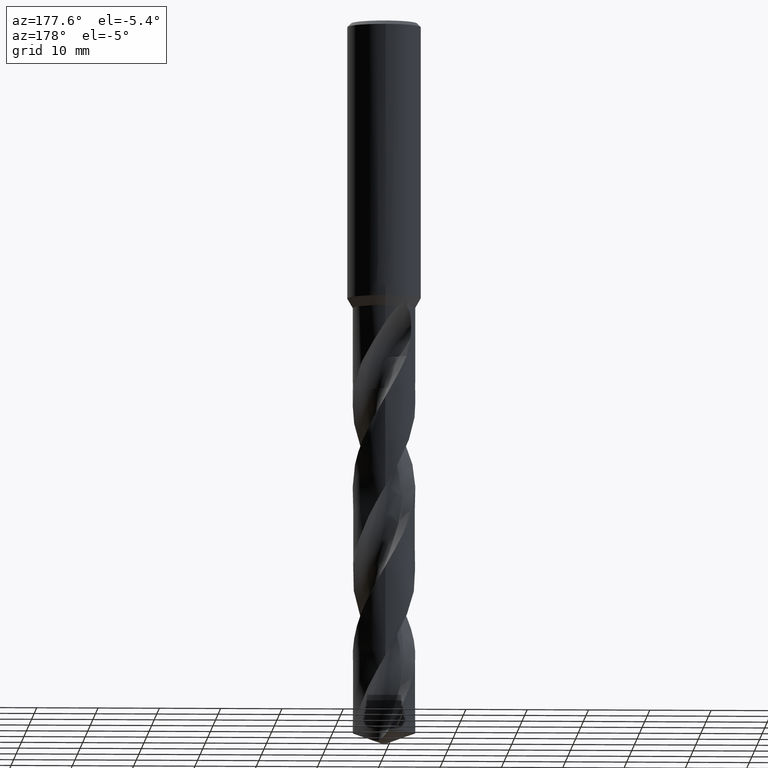
[diagram: clean part render]
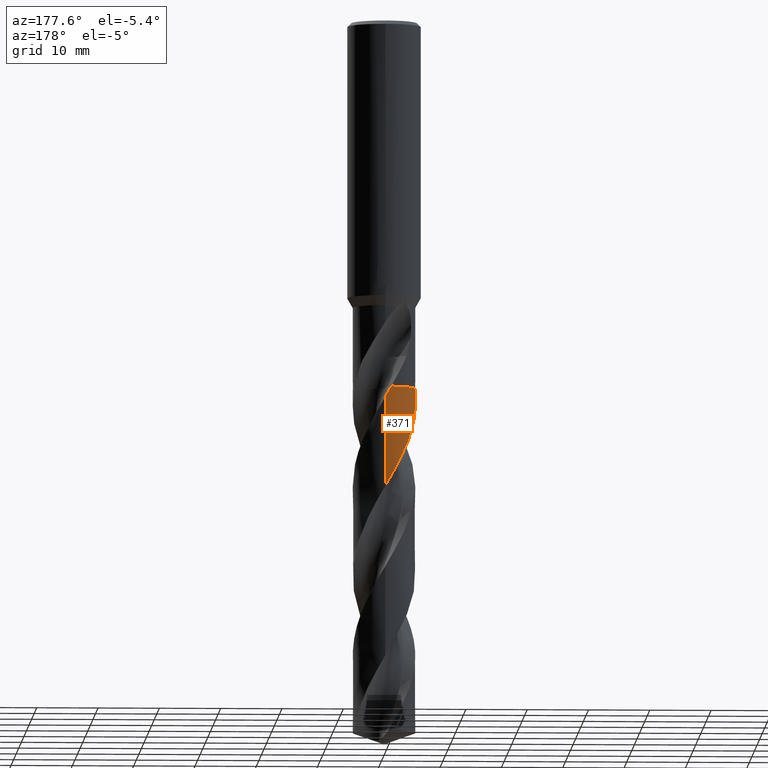
[diagram: same view with one face highlighted and labeled with its STEP entity id]
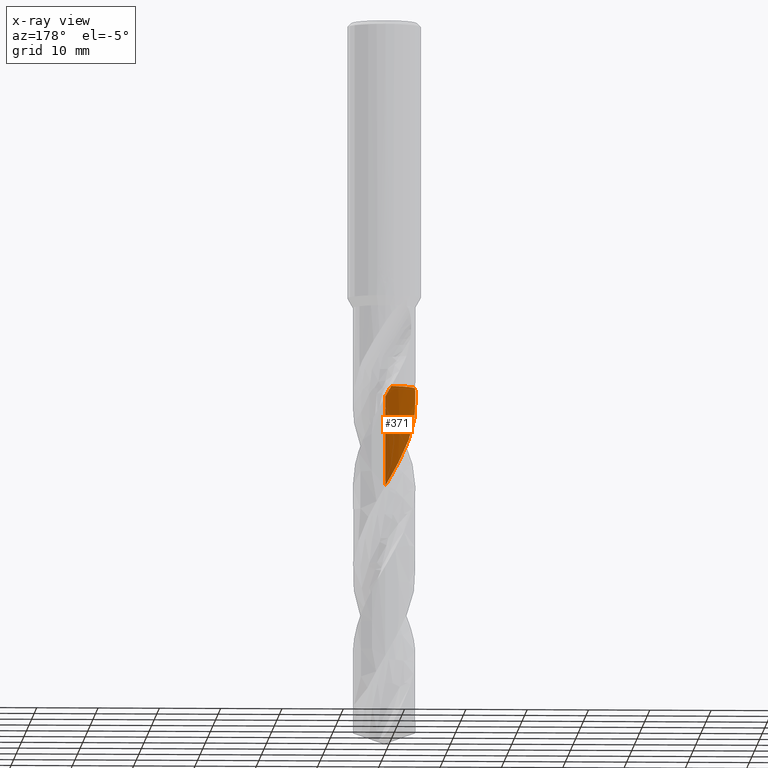
[diagram: x-ray of the same camera — body ghosted, the highlighted face saturated]
A machine part, auxiliary view. The second image highlights one B-rep face of the part: STEP entity #371.
The next image is the same camera in x-ray: the body ghosted, the highlighted face saturated — about 0% of this face is hidden behind the body in this view.
In plain terms, the highlighted conical surface has half-angle 0 deg.
Its self-contained STEP definition (entity closure, byte-faithful):
#315=VERTEX_POINT('',#871);
#339=VERTEX_POINT('',#897);
#371=ADVANCED_FACE('',(#932),#933,.T.);
#431=EDGE_CURVE('',#339,#761,#999,.T.);
#461=VERTEX_POINT('',#1031);
#475=EDGE_CURVE('',#641,#769,#1046,.T.);
#487=EDGE_CURVE('',#461,#315,#1058,.T.);
#525=EDGE_CURVE('',#769,#339,#1099,.T.);
#641=VERTEX_POINT('',#1220);
#685=EDGE_CURVE('',#761,#461,#1269,.T.);
#713=EDGE_CURVE('',#315,#641,#1301,.T.);
#761=VERTEX_POINT('',#1355);
#769=VERTEX_POINT('',#1364);
#871=CARTESIAN_POINT('',(-0.98374388913353,5.00412110768931,-59.8049999999999));
#897=CARTESIAN_POINT('',(-4.90325783809125,-1.40251300010991,-59.805));
#932=FACE_OUTER_BOUND('',#2489,.T.);
#933=CONICAL_SURFACE('',#2490,5.09995,1.7748196879988E-006);
#999=B_SPLINE_CURVE_WITH_KNOTS('',3,(#3579,#3580,#3581,#3582),.UNSPECIFIED.,.F.,.F.,(4,4),(0.0,0.0126443628312227),.UNSPECIFIED.);
#1031=CARTESIAN_POINT('',(-0.986576613607107,5.00356338977369,-59.8));
#1046=LINE('',#3854,#3855);
#1058=B_SPLINE_CURVE_WITH_KNOTS('',3,(#3891,#3892,#3893,#3894),.UNSPECIFIED.,.F.,.F.,(4,4),(0.0,0.0103459259684226),.UNSPECIFIED.);
#1099=B_SPLINE_CURVE_WITH_KNOTS('',3,(#3978,#3979,#3980,#3981,#3982,#3983,#3984,#3985,#3986,#3987,#3988,#3989,#3990,#3991,#3992,#3993,#3994,#3995,#3996,#3997,#3998,#3999,#4000,#4001,#4002,#4003,#4004,#4005,#4006,#4007,#4008,#4009,#4010,#4011,#4012,#4013,#4014,#4015,#4016,#4017,#4018,#4019,#4020,#4021,#4022,#4023,#4024,#4025,#4026,#4027,#4028,#4029,#4030,#4031,#4032,#4033,#4034,#4035,#4036,#4037,#4038,#4039,#4040,#4041,#4042,#4043,#4044,#4045,#4046,#4047,#4048,#4049,#4050,#4051,#4052,#4053,#4054,#4055),.UNSPECIFIED.,.F.,.F.,(4,2,2,2,2,2,2,2,2,2,2,2,2,2,2,2,2,2,2,2,2,2,2,2,2,2,2,2,2,2,2,2,2,2,2,2,2,2,4),(0.0,0.506806175186956,2.69772159976529,4.39821414943866,5.06985226234535,6.05446138479727,6.6155146856946,7.39544015269118,9.1730037461211,9.35662725150545,10.9569984848496,12.1630978019623,15.1464025452352,17.3925714709042,19.6606016495272,21.9100545164391,24.1780187171165,26.5652812262565,28.5220833392288,30.4759061097924,33.3469893832097,35.5102113997374,38.5334292747973,39.3424559377009,42.7908344138158,43.8460064045198,47.230343596797,48.2550312815849,51.2280095190966,52.0685973276942,52.8538685811947,54.345493536443,55.0006115957432,56.229319076894,56.7671955061043,57.2703456125229,59.1621746454104,59.5163769769078,64.8776815178154),.UNSPECIFIED.);
#1220=CARTESIAN_POINT('',(9.86913019607822E-012,5.09990305292981,-61.5201351925711));
#1269=CIRCLE('',#6421,5.0999);
#1301=B_SPLINE_CURVE_WITH_KNOTS('',3,(#6559,#6560,#6561,#6562,#6563,#6564,#6565,#6566,#6567,#6568,#6569,#6570,#6571,#6572,#6573,#6574,#6575,#6576,#6577,#6578,#6579,#6580,#6581,#6582,#6583,#6584,#6585,#6586,#6587,#6588,#6589,#6590,#6591,#6592,#6593,#6594,#6595,#6596,#6597,#6598,#6599,#6600,#6601,#6602,#6603,#6604,#6605,#6606,#6607,#6608,#6609,#6610,#6611,#6612,#6613,#6614,#6615,#6616,#6617,#6618,#6619,#6620,#6621,#6622,#6623,#6624,#6625,#6626,#6627,#6628,#6629,#6630,#6631,#6632,#6633,#6634,#6635,#6636,#6637,#6638,#6639,#6640,#6641,#6642),.UNSPECIFIED.,.F.,.F.,(4,2,2,2,2,2,2,2,2,2,2,2,2,2,2,2,2,2,2,2,2,2,2,2,2,2,2,2,2,2,2,2,2,2,2,2,2,2,2,2,2,4),(0.0,4.14104329749527,5.11842358928837,6.08666253894648,7.05877666723696,9.01036426490475,10.0033521753285,10.3315079213021,11.7449117975777,12.7232042316135,16.9422837005349,17.0632145290833,20.5080083112182,23.2581567473626,25.2268379664242,26.640381537535,28.8179240590602,32.2396876966281,34.6587318716296,35.8792422499416,38.1912921986218,39.179433071881,40.4222015232478,42.7059818802668,43.6946195520445,44.9754610945242,47.2606856978877,51.1929236706221,52.8928398321234,54.2130159433661,55.560852710194,56.1535217087249,57.2643225463067,57.7512955933355,58.6617007419882,60.2588877445092,60.5582633934712,61.6830222783156,63.3719657069717,64.2159601657003,64.6377815976494,65.0592084040701),.UNSPECIFIED.);
#1355=CARTESIAN_POINT('',(-4.90246778498844,-1.40527208296134,-59.8));
#1364=CARTESIAN_POINT('',(-9.74273749090929E-012,5.09992900482054,-76.1424040953496));
#2489=EDGE_LOOP('',(#9900,#9901,#9902,#9903,#9904,#9905));
#2490=AXIS2_PLACEMENT_3D('',#9906,#9907,#9908);
#3579=CARTESIAN_POINT('',(-4.90419855567647,-1.39922004524644,-59.8109661820139));
#3580=CARTESIAN_POINT('',(-4.90362286057172,-1.40123780508678,-59.807310822254));
#3581=CARTESIAN_POINT('',(-4.90304593682381,-1.40325515136825,-59.803655429043));
#3582=CARTESIAN_POINT('',(-4.90246778498843,-1.40527208296136,-59.8));
#3854=CARTESIAN_POINT('',(-6.16813008313439E-016,5.09995,-87.9718759026212));
#3855=VECTOR('',#10027,1.0);
#3891=CARTESIAN_POINT('',(-0.9865766136071,5.00356338977368,-59.8));
#3892=CARTESIAN_POINT('',(-0.98488470584999,5.00389699675089,-59.8029865173861));
#3893=CARTESIAN_POINT('',(-0.983192636907565,5.00422974399151,-59.8059730394419));
#3894=CARTESIAN_POINT('',(-0.981500407433335,5.00456163139205,-59.8089595661627));
#3978=CARTESIAN_POINT('',(-5.01437536289495,-0.930612550953527,-116.143751805242));
#3979=CARTESIAN_POINT('',(-4.9990156640066,-1.01337306155312,-115.997280155719));
#3980=CARTESIAN_POINT('',(-4.98160673251397,-1.09579353412783,-115.850301911086));
#3981=CARTESIAN_POINT('',(-4.87744584134155,-1.53446392031619,-115.066026681066));
#3982=CARTESIAN_POINT('',(-4.75454219505738,-1.88130734597919,-114.433182944864));
#3983=CARTESIAN_POINT('',(-4.4714205411358,-2.46934917168271,-113.303599313404));
#3984=CARTESIAN_POINT('',(-4.32642306954688,-2.71535747189411,-112.812350880042));
#3985=CARTESIAN_POINT('',(-4.09671358556612,-3.03965892210803,-112.123603532596));
#3986=CARTESIAN_POINT('',(-4.02869059727373,-3.12925580712766,-111.928327710424));
#3987=CARTESIAN_POINT('',(-3.85364941154734,-3.34462584414786,-111.447366291556));
#3988=CARTESIAN_POINT('',(-3.74338890942619,-3.46759639941368,-111.161957305325));
#3989=CARTESIAN_POINT('',(-3.56113980127987,-3.65199141933991,-110.713274970349));
#3990=CARTESIAN_POINT('',(-3.49317491953676,-3.7170510486422,-110.550479162151));
#3991=CARTESIAN_POINT('',(-3.32660145001009,-3.86790620793833,-110.16110013988));
#3992=CARTESIAN_POINT('',(-3.22639980684137,-3.95187678677829,-109.934286903758));
#3993=CARTESIAN_POINT('',(-2.8874124521328,-4.21444426559598,-109.191601306119));
#3994=CARTESIAN_POINT('',(-2.63632777164021,-4.37588522808612,-108.678154904842));
#3995=CARTESIAN_POINT('',(-2.34541078255551,-4.52878015004869,-108.108617505906));
#3996=CARTESIAN_POINT('',(-2.31804275199572,-4.54284929407706,-108.055276453413));
#3997=CARTESIAN_POINT('',(-2.05072575888418,-4.67722178359776,-107.536878484027));
#3998=CARTESIAN_POINT('',(-1.80193860207216,-4.77856550838434,-107.073892332235));
#3999=CARTESIAN_POINT('',(-1.35405804193212,-4.92109216011242,-106.258075377716));
#4000=CARTESIAN_POINT('',(-1.15816486900284,-4.97085452158816,-105.906053939047));
#4001=CARTESIAN_POINT('',(-0.468015067129299,-5.10305303853319,-104.68792901675));
#4002=CARTESIAN_POINT('',(0.0345516234611005,-5.12436552032611,-103.834742762714));
#4003=CARTESIAN_POINT('',(0.907158342407013,-5.03277639519837,-102.315581546276));
#4004=CARTESIAN_POINT('',(1.27611766301375,-4.95212811014398,-101.657907080069));
#4005=CARTESIAN_POINT('',(1.99433130689478,-4.70929417495415,-100.346277614883));
#4006=CARTESIAN_POINT('',(2.3402268930041,-4.54730274844383,-99.6937171090476));
#4007=CARTESIAN_POINT('',(2.98673605067603,-4.15110151986585,-98.3812957479625));
#4008=CARTESIAN_POINT('',(3.28550329496123,-3.91891972628882,-97.7230595034067));
#4009=CARTESIAN_POINT('',(3.82943013031851,-3.38972930185451,-96.4105496973377));
#4010=CARTESIAN_POINT('',(4.07174730419821,-3.09442068708233,-95.757945295402));
#4011=CARTESIAN_POINT('',(4.49694006104684,-2.43879471680514,-94.4054680304545));
#4012=CARTESIAN_POINT('',(4.67454093233806,-2.07828015218606,-93.70676173416));
#4013=CARTESIAN_POINT('',(4.91791214534245,-1.38991935680526,-92.4445981840229));
#4014=CARTESIAN_POINT('',(4.99727312464737,-1.07002140805806,-91.8801712570881));
#4015=CARTESIAN_POINT('',(5.09323082010345,-0.419922308027232,-90.7441187340988));
#4016=CARTESIAN_POINT('',(5.10959936990615,-0.0921332461078373,-90.1726849288547));
#4017=CARTESIAN_POINT('',(5.07244863455344,0.714662142703177,-88.7716151265527));
#4018=CARTESIAN_POINT('',(4.98261522701799,1.18927144293379,-87.9507333931186));
#4019=CARTESIAN_POINT('',(4.7106610616158,1.98757638902492,-86.4903646439546));
#4020=CARTESIAN_POINT('',(4.55772274175484,2.31694703363092,-85.8582460001127));
#4021=CARTESIAN_POINT('',(4.10950881128891,3.06242591892712,-84.3534938063252));
#4022=CARTESIAN_POINT('',(3.7855133875854,3.4545363806879,-83.4907191021389));
#4023=CARTESIAN_POINT('',(3.3100228322701,3.88218554586589,-82.3773805516894));
#4024=CARTESIAN_POINT('',(3.20612658802229,3.96844285591263,-82.1416373804866));
#4025=CARTESIAN_POINT('',(2.63910858137851,4.40213494808915,-80.9011328442572));
#4026=CARTESIAN_POINT('',(2.12370290470067,4.67262842355339,-79.9184031571653));
#4027=CARTESIAN_POINT('',(1.40552798253318,4.90561976622134,-78.6077109834897));
#4028=CARTESIAN_POINT('',(1.23499924444043,4.95129043796247,-78.2994018772178));
#4029=CARTESIAN_POINT('',(0.508299717233673,5.10604879314594,-77.0080236855031));
#4030=CARTESIAN_POINT('',(-0.0613335155582535,5.13094485268736,-76.0445765438895));
#4031=CARTESIAN_POINT('',(-0.793997436250945,5.04065999736431,-74.76384643561));
#4032=CARTESIAN_POINT('',(-0.962576505811624,5.01116723378968,-74.4650018135692));
#4033=CARTESIAN_POINT('',(-1.61164241170653,4.86382926011549,-73.306234643058));
#4034=CARTESIAN_POINT('',(-2.07694416910319,4.68436217058621,-72.4583142409519));
#4035=CARTESIAN_POINT('',(-2.63271078983409,4.37010618174268,-71.356240339497));
#4036=CARTESIAN_POINT('',(-2.75205542246139,4.29593154467345,-71.1135012256426));
#4037=CARTESIAN_POINT('',(-2.97626453686376,4.14344981773009,-70.643032705702));
#4038=CARTESIAN_POINT('',(-3.08145214528257,4.0658224270207,-70.4152484902633));
#4039=CARTESIAN_POINT('',(-3.37755168894403,3.82922409846394,-69.756712845628));
#4040=CARTESIAN_POINT('',(-3.5601664070454,3.66009699420584,-69.327069950092));
#4041=CARTESIAN_POINT('',(-3.80444675892999,3.39812808028086,-68.706750949306));
#4042=CARTESIAN_POINT('',(-3.8763983991149,3.31581425893215,-68.5173113679304));
#4043=CARTESIAN_POINT('',(-4.07556938576426,3.07260505836869,-67.972984727614));
#4044=CARTESIAN_POINT('',(-4.19582223445529,2.90624833737322,-67.6188615585607));
#4045=CARTESIAN_POINT('',(-4.35388059770288,2.65723546691003,-67.1085256736772));
#4046=CARTESIAN_POINT('',(-4.39996260099227,2.58020963016195,-66.9531879979826));
#4047=CARTESIAN_POINT('',(-4.48512040972022,2.42895801868104,-66.6523215920484));
#4048=CARTESIAN_POINT('',(-4.52444184833137,2.35490191498762,-66.5067700011642));
#4049=CARTESIAN_POINT('',(-4.70292661230865,1.99775767125918,-65.8146252548848));
#4050=CARTESIAN_POINT('',(-4.8174139024952,1.70323516743473,-65.2713549808465));
#4051=CARTESIAN_POINT('',(-4.92017365399543,1.34329563795525,-64.6223161993472));
#4052=CARTESIAN_POINT('',(-4.93538689040048,1.28627738749977,-64.5199062797178));
#4053=CARTESIAN_POINT('',(-5.16502844249025,0.361387211220461,-62.8677786676665));
#4054=CARTESIAN_POINT('',(-5.14814403465456,-0.546470136682576,-61.3561769176555));
#4055=CARTESIAN_POINT('',(-4.90322234654316,-1.4026370581174,-59.8047751960075));
#6421=AXIS2_PLACEMENT_3D('',#10204,#10205,#10206);
#6559=CARTESIAN_POINT('',(-0.984615721093342,5.00394963548128,-59.8034611979805));
#6560=CARTESIAN_POINT('',(-0.307365696002802,5.13721273568368,-60.9988411811976));
#6561=CARTESIAN_POINT('',(0.39002747452866,5.13161099114901,-62.1825914634169));
#6562=CARTESIAN_POINT('',(1.22445248527238,4.95341416670286,-63.660177821283));
#6563=CARTESIAN_POINT('',(1.3820697733521,4.91177015103264,-63.9421787759407));
#6564=CARTESIAN_POINT('',(1.69132744116389,4.81399317118228,-64.5038340402206));
#6565=CARTESIAN_POINT('',(1.84281194236439,4.75806201459791,-64.7831631736589));
#6566=CARTESIAN_POINT('',(2.1405232760885,4.63179113195253,-65.3433510631192));
#6567=CARTESIAN_POINT('',(2.28659745937101,4.56144937871759,-65.6238804208191));
#6568=CARTESIAN_POINT('',(2.71516226077853,4.32930053911736,-66.467893547904));
#6569=CARTESIAN_POINT('',(2.98571712012778,4.14733688152301,-67.0298148907716));
#6570=CARTESIAN_POINT('',(3.36495094932493,3.83583387073943,-67.8799244496078));
#6571=CARTESIAN_POINT('',(3.4876671976519,3.72460931309602,-68.1664207102799));
#6572=CARTESIAN_POINT('',(3.64347230624182,3.56892714281497,-68.5478034398138));
#6573=CARTESIAN_POINT('',(3.68154726005893,3.52963777007456,-68.6425238662642));
#6574=CARTESIAN_POINT('',(3.88022016794244,3.31791548523437,-69.1452751328238));
#6575=CARTESIAN_POINT('',(4.02937804923852,3.13509522782639,-69.5528172314168));
#6576=CARTESIAN_POINT('',(4.25950201651731,2.80934614480963,-70.2431876934746));
#6577=CARTESIAN_POINT('',(4.34714165373955,2.67172401852124,-70.5251848488719));
#6578=CARTESIAN_POINT('',(4.77682398503797,1.91975090711364,-72.0259635768624));
#6579=CARTESIAN_POINT('',(4.99593099910179,1.24314465009193,-73.232075144374));
#6580=CARTESIAN_POINT('',(5.07306168182975,0.52316165087817,-74.4848882730818));
#6581=CARTESIAN_POINT('',(5.07509130322998,0.503092238632936,-74.5197907386953));
#6582=CARTESIAN_POINT('',(5.13143455614094,-0.0891255224492417,-75.5494336263376));
#6583=CARTESIAN_POINT('',(5.08875925053858,-0.666871165584541,-76.541530133851));
#6584=CARTESIAN_POINT('',(4.84022495462709,-1.67106068836528,-78.3309877237628));
#6585=CARTESIAN_POINT('',(4.67025995847174,-2.09957941655942,-79.1221811990753));
#6586=CARTESIAN_POINT('',(4.28471782608259,-2.78536852372584,-80.4860324616932));
#6587=CARTESIAN_POINT('',(4.09649651166674,-3.0555147399375,-81.0533875250666));
#6588=CARTESIAN_POINT('',(3.73036584339394,-3.48561014968563,-82.0303470606712));
#6589=CARTESIAN_POINT('',(3.5651790842897,-3.6543769816146,-82.437619524603));
#6590=CARTESIAN_POINT('',(3.11760373164529,-4.05238938734739,-83.475584417922));
#6591=CARTESIAN_POINT('',(2.82106239860437,-4.2641699629993,-84.1043776339689));
#6592=CARTESIAN_POINT('',(2.00687030104467,-4.72315104941767,-85.7226567889715));
#6593=CARTESIAN_POINT('',(1.46594197171483,-4.91792967021028,-86.7028704477593));
#6594=CARTESIAN_POINT('',(0.50743884680176,-5.09064932960604,-88.3915383187121));
#6595=CARTESIAN_POINT('',(0.103024557222495,-5.11489928784523,-89.0878803918197));
#6596=CARTESIAN_POINT('',(-0.503908974206496,-5.07909192378825,-90.1394126076376));
#6597=CARTESIAN_POINT('',(-0.706358055164969,-5.05490286707546,-90.4914677660447));
#6598=CARTESIAN_POINT('',(-1.28622902950233,-4.95014227222118,-91.5128037403623));
#6599=CARTESIAN_POINT('',(-1.65700645867269,-4.83869668141722,-92.1802174511263));
#6600=CARTESIAN_POINT('',(-2.16345739161219,-4.62128426976914,-93.1341537207852));
#6601=CARTESIAN_POINT('',(-2.31189181762722,-4.54884696530233,-93.4194924110004));
#6602=CARTESIAN_POINT('',(-2.63857850213762,-4.36928242268744,-94.0642166452249));
#6603=CARTESIAN_POINT('',(-2.8141254186092,-4.25832202265131,-94.4227355340337));
#6604=CARTESIAN_POINT('',(-3.2914648800211,-3.91421760185597,-95.4426186215099));
#6605=CARTESIAN_POINT('',(-3.57482951275185,-3.6572883907733,-96.1021592214276));
#6606=CARTESIAN_POINT('',(-3.9361422501923,-3.24710795271833,-97.0483709665458));
#6607=CARTESIAN_POINT('',(-4.03924894632196,-3.11792123683306,-97.333947470291));
#6608=CARTESIAN_POINT('',(-4.26118819185505,-2.81029859032143,-97.9900180841714));
#6609=CARTESIAN_POINT('',(-4.37528626620305,-2.62911674567068,-98.3595909433292));
#6610=CARTESIAN_POINT('',(-4.66023084958059,-2.10652315756659,-99.3911782840466));
#6611=CARTESIAN_POINT('',(-4.80479804151371,-1.75198359492307,-100.051261374567));
#6612=CARTESIAN_POINT('',(-5.08683904135791,-0.752045484241685,-101.849465587918));
#6613=CARTESIAN_POINT('',(-5.14123612731104,-0.0913309991263787,-102.976647802997));
#6614=CARTESIAN_POINT('',(-5.03779786203168,0.843155168676599,-104.60618464559));
#6615=CARTESIAN_POINT('',(-4.98306849772172,1.12232398848163,-105.096784160734));
#6616=CARTESIAN_POINT('',(-4.84488061709741,1.60800183393895,-105.970078080327));
#6617=CARTESIAN_POINT('',(-4.77078761840208,1.81605110018019,-106.351206378828));
#6618=CARTESIAN_POINT('',(-4.59438881276937,2.22533611263233,-107.123003912135));
#6619=CARTESIAN_POINT('',(-4.49167649622413,2.425981214465,-107.512649513708));
#6620=CARTESIAN_POINT('',(-4.32519289762172,2.70413813636809,-108.073998195178));
#6621=CARTESIAN_POINT('',(-4.2718863494235,2.78758755875673,-108.245373113176));
#6622=CARTESIAN_POINT('',(-4.11179499467326,3.02281890790983,-108.738182557309));
#6623=CARTESIAN_POINT('',(-3.9991025771441,3.17040769213731,-109.059370282323));
#6624=CARTESIAN_POINT('',(-3.82578800181662,3.37340249185513,-109.521588496947));
#6625=CARTESIAN_POINT('',(-3.77148869707442,3.43400283154631,-109.662437921014));
#6626=CARTESIAN_POINT('',(-3.61157210555002,3.60410511397629,-110.066666536741));
#6627=CARTESIAN_POINT('',(-3.5024929611616,3.71019713656834,-110.329866757363));
#6628=CARTESIAN_POINT('',(-3.18948223130079,3.98851919160759,-111.055324915959));
#6629=CARTESIAN_POINT('',(-2.97647365778753,4.14990915646034,-111.516706903072));
#6630=CARTESIAN_POINT('',(-2.7096583566607,4.32090038636533,-112.065327818539));
#6631=CARTESIAN_POINT('',(-2.66715228088356,4.34726672403215,-112.151911401984));
#6632=CARTESIAN_POINT('',(-2.46314471663493,4.46969380632064,-112.563927135031));
#6633=CARTESIAN_POINT('',(-2.29682147740203,4.55739456890997,-112.889255866303));
#6634=CARTESIAN_POINT('',(-1.86964290144846,4.7533115476962,-113.70337073187));
#6635=CARTESIAN_POINT('',(-1.60384868609447,4.84946288858881,-114.191141842518));
#6636=CARTESIAN_POINT('',(-1.19525505282082,4.95996318925725,-114.923891476472));
#6637=CARTESIAN_POINT('',(-1.05762130190207,4.99112433099348,-115.167911879246));
#6638=CARTESIAN_POINT('',(-0.849498483344973,5.02924574739333,-115.534062686281));
#6639=CARTESIAN_POINT('',(-0.779888676167713,5.0405094954104,-115.656059263759));
#6640=CARTESIAN_POINT('',(-0.640314738312054,5.06013383965679,-115.899980503228));
#6641=CARTESIAN_POINT('',(-0.570390569581416,5.0684918049885,-116.021803783301));
#6642=CARTESIAN_POINT('',(-0.500325752547306,5.07539891450295,-116.143751805242));
#9900=ORIENTED_EDGE('',*,*,#475,.T.);
#9901=ORIENTED_EDGE('',*,*,#525,.T.);
#9902=ORIENTED_EDGE('',*,*,#431,.T.);
#9903=ORIENTED_EDGE('',*,*,#685,.T.);
#9904=ORIENTED_EDGE('',*,*,#487,.T.);
#9905=ORIENTED_EDGE('',*,*,#713,.T.);
#9906=CARTESIAN_POINT('',(0.0,0.0,-87.9718759026212));
#9907=DIRECTION('',(0.0,-0.0,-1.0));
#9908=DIRECTION('',(0.0,1.0,0.0));
#10027=DIRECTION('',(-2.17345546681124E-022,1.77481968799787E-006,-0.999999999998425));
#10204=CARTESIAN_POINT('',(0.0,0.0,-59.8));
#10205=DIRECTION('',(0.0,0.0,-1.0));
#10206=DIRECTION('',(0.0,1.0,0.0));